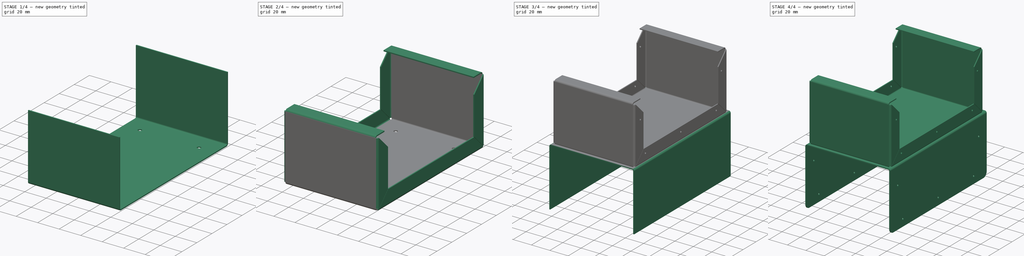
[diagram: build sequence overview — one tinted view per stage of 4, left to right]
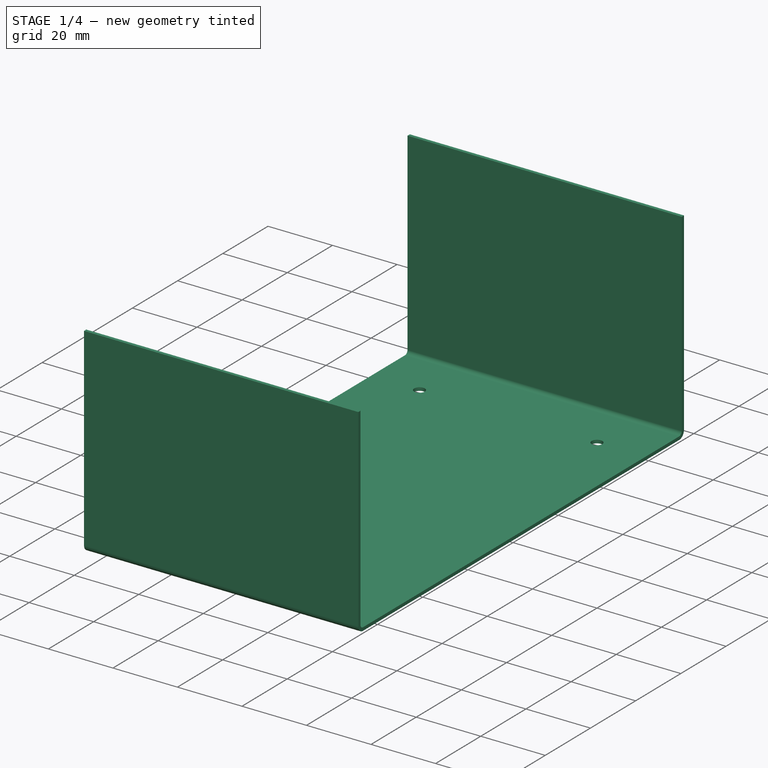
[diagram: stage 1 of 4 — iso view after this stage's code; geometry added in this stage tinted green]
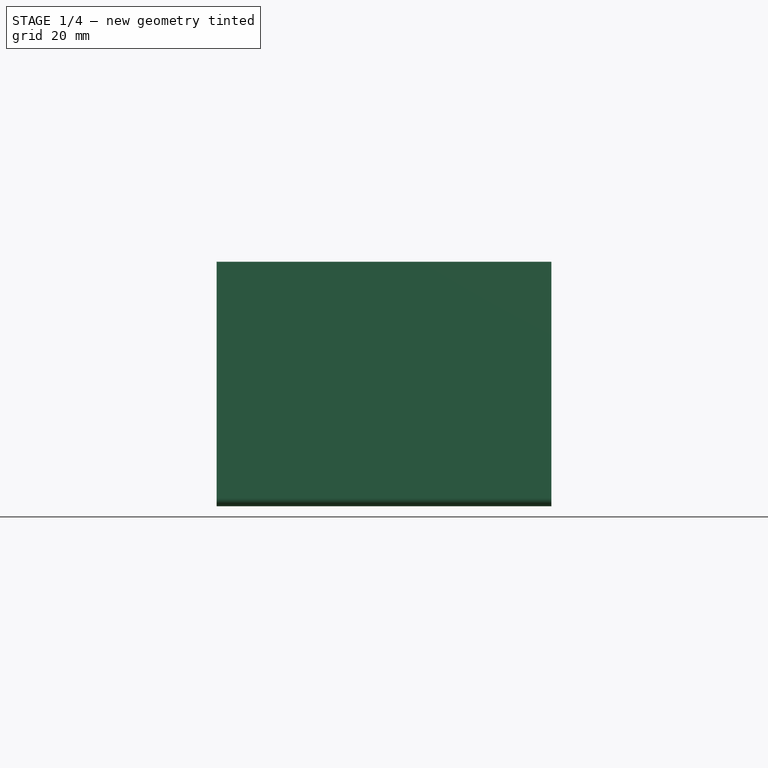
[diagram: stage 1 of 4 — front view after this stage's code; geometry added in this stage tinted green]
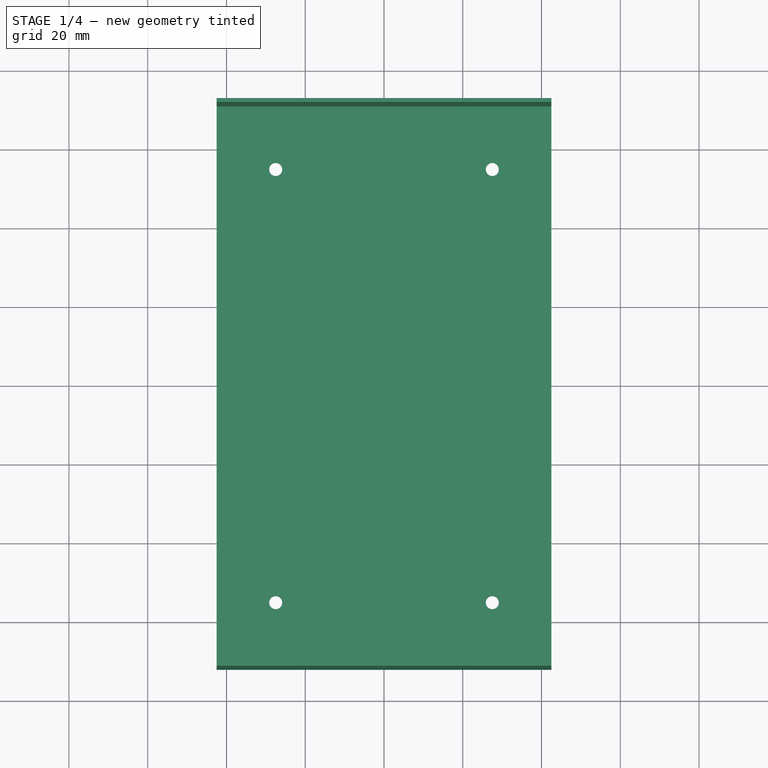
[diagram: stage 1 of 4 — top view after this stage's code; geometry added in this stage tinted green]
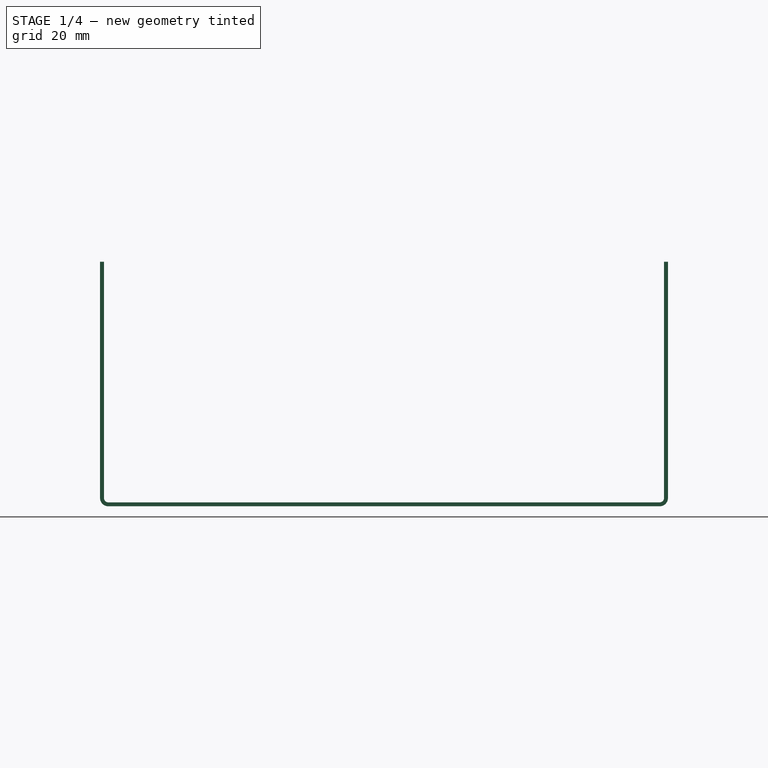
[diagram: stage 1 of 4 — right view after this stage's code; geometry added in this stage tinted green]
FCSTD DOCUMENT  (FreeCAD 0.21R33771 (Git))
Label: ADVtypeM_paramEnclosure
License: All rights reserved
LicenseURL: http://en.wikipedia.org/wiki/All_rights_reserved
objects: PartDesign::FeaturePython×5, Sketcher::SketchObject×4, PartDesign::Pad×2, PartDesign::Pocket×2, PartDesign::Body×2, Spreadsheet::Sheet×1, PartDesign::Fillet×1
note: 21 computed .brp shape members not serialized (recipe doc carries the construction recipe); baked Part::Feature solids carry a one-line shape summary decoded from their .brp

FEATURE [Sketcher::SketchObject] Sketch015
  FullyConstrained = true
  MapMode = 5
  Support = -> [XY_Plane124]
  expr: Constraints[17] = Spreadsheet.footw
  expr: Constraints[18] = Spreadsheet.footl
  expr: Constraints[8] = Spreadsheet.width
  expr: Constraints[9] = Spreadsheet.length
  sketch-geometry (8):
    g0: LineSegment StartX=-42.5 StartY=70 StartZ=0 EndX=42.5 EndY=70 EndZ=0
    g1: LineSegment StartX=42.5 StartY=70 StartZ=0 EndX=42.5 EndY=-70 EndZ=0
    g2: LineSegment StartX=42.5 StartY=-70 StartZ=0 EndX=-42.5 EndY=-70 EndZ=0
    g3: LineSegment StartX=-42.5 StartY=-70 StartZ=0 EndX=-42.5 EndY=70 EndZ=0
    g4: Circle CenterX=-27.5 CenterY=55 CenterZ=0 NormalX=0 NormalY=0 NormalZ=1 AngleXU=0 Radius=1.65
    g5: Circle CenterX=27.5 CenterY=55 CenterZ=0 NormalX=0 NormalY=0 NormalZ=1 AngleXU=0 Radius=1.65
    g6: Circle CenterX=-27.5 CenterY=-55 CenterZ=0 NormalX=0 NormalY=0 NormalZ=1 AngleXU=0 Radius=1.65
    g7: Circle CenterX=27.5 CenterY=-55 CenterZ=0 NormalX=0 NormalY=0 NormalZ=1 AngleXU=0 Radius=1.65
  constraints (19):
    c: Coincident(g0,g1)
    c: Coincident(g1,g2)
    c: Coincident(g2,g3)
    c: Coincident(g3,g0)
    c: Horizontal(g2)
    c: Vertical(g1)
    c: Symmetric(g0,g0,g-2)
    c: Symmetric(g0,g2,g-1)
    c: DistanceX(g0,g0) = 85
    c: DistanceY(g1,g1) = 140
    c: Equal(g4,g5)
    c: Equal(g5,g6)
    c: Equal(g6,g7)
    c: Diameter(g4) = 3.3
    c: Symmetric(g4,g5,g-2)
    c: Symmetric(g6,g7,g-2)
    c: Symmetric(g6,g4,g-1)
    c: DistanceX(g4,g5) = 55
    c: DistanceY(g6,g4) = 110
FEATURE [Spreadsheet::Sheet] Spreadsheet
  cells = A2='inner length (min 50); B2=140; C2(length)==B2 < 75 ? 75 : B2; D2(footl)==length - 30; E2(hemholetop)==length - hem - radius * 2; F2(toplength)==length + 10; A3='inner width (min 50); B3=85; C3(width)==B3 < 50 ? 50 : B3; D3(footw)==width - 30; E3(holewdepth)==width + 10; F3(topwidth)==width + radius * 2 + thickness; A4='inner height (min 25); B4=60; C4(height)==B4 < 25 ? 25 : B4; D4(hemholefrontrear)==height * 0.75; E4(coverposition)==height + thickness * 2 + radius * 2; F4(coverheight)==height + thickness * 2; A5='thickness (min 0.6 max 2.0); B5=1; C5(thickness)==B5 < 0.6 ? 0.6 : (B5 > 2 ? 2 : B5); D5(radius)==thickness * 1.1; A6='hem (min 10 max 20); B6=12; C6(hem)==B6 < 10 ? 10 : (B6 > 20 ? 20 : B6); D6(hemholebot)==hem - 3; E6(coverhemholebot)==-coverposition + hemholebot; F6(coverhemholefrontrear)==-coverposition * 0.25 - radius * 2 - thickness
FEATURE [PartDesign::Pad] Pad002
  Direction = (0,0,1)
  Length = 1
  Length2 = 10
  Profile = -> Sketch015
  ReferenceAxis = -> Sketch015 [N_Axis]
  Type = 0
  expr: Length = Spreadsheet.thickness
FEATURE [PartDesign::FeaturePython] Bend015  # WARN: FeaturePython — macro-defined, semantics opaque (R4)
  AutoMiter = false
  BaseFeature = -> Pad002
  BendType = 0
  LengthList = [60]
  LengthSpec = 0
  ReliefFactor = 0.7
  UseReliefFactor = false
  angle = 90
  baseObject = -> Pad002 [Edge9,Edge3]
  bendAList = [90]
  extend1 = 0
  extend2 = 0
  gap1 = 0
  gap2 = 0
  invert = false
  kfactor = 0.5
  length = 60
  maxExtendDist = 5
  minGap = 0.1
  minReliefGap = 1
  miterangle1 = 0
  miterangle2 = 0
  offset = 0
  radius = 1.1
  reliefType = 0
  reliefd = 1
  reliefw = 0.8
  sketchflip = false
  sketchinvert = false
  unfold = false
  expr: length = Spreadsheet.height
  expr: radius = Spreadsheet.radius
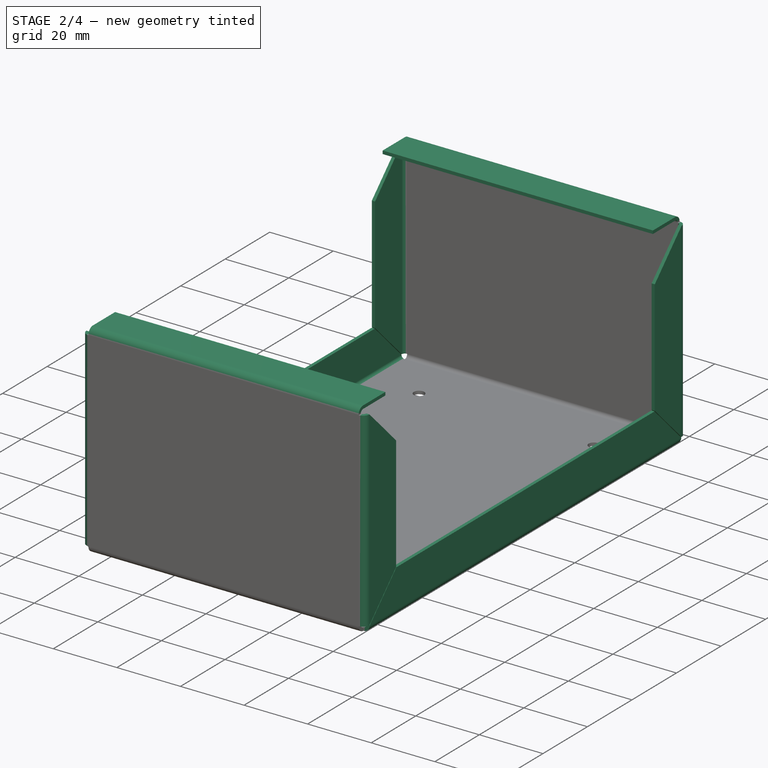
[diagram: stage 2 of 4 — iso view after this stage's code; geometry added in this stage tinted green]
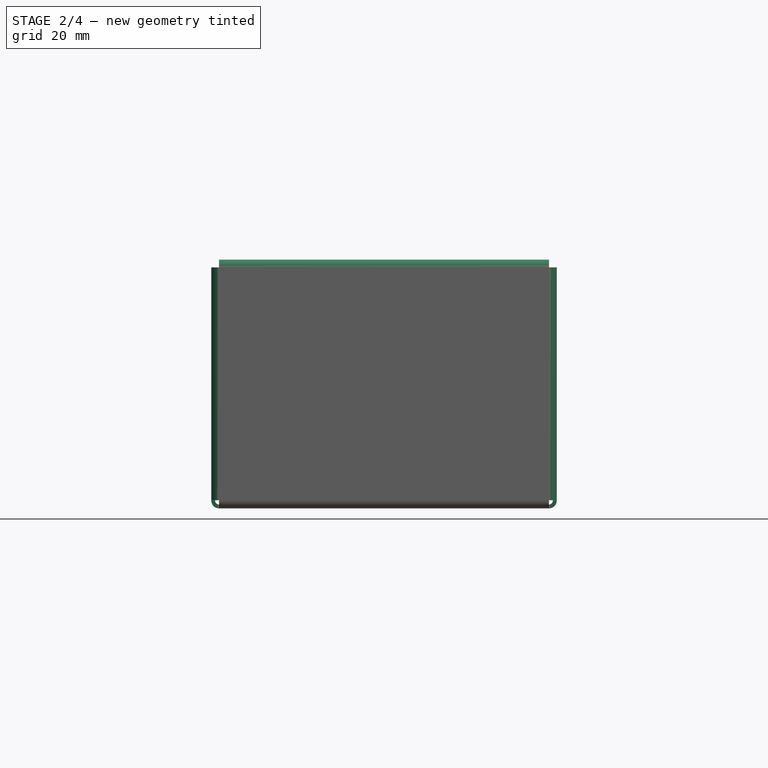
[diagram: stage 2 of 4 — front view after this stage's code; geometry added in this stage tinted green]
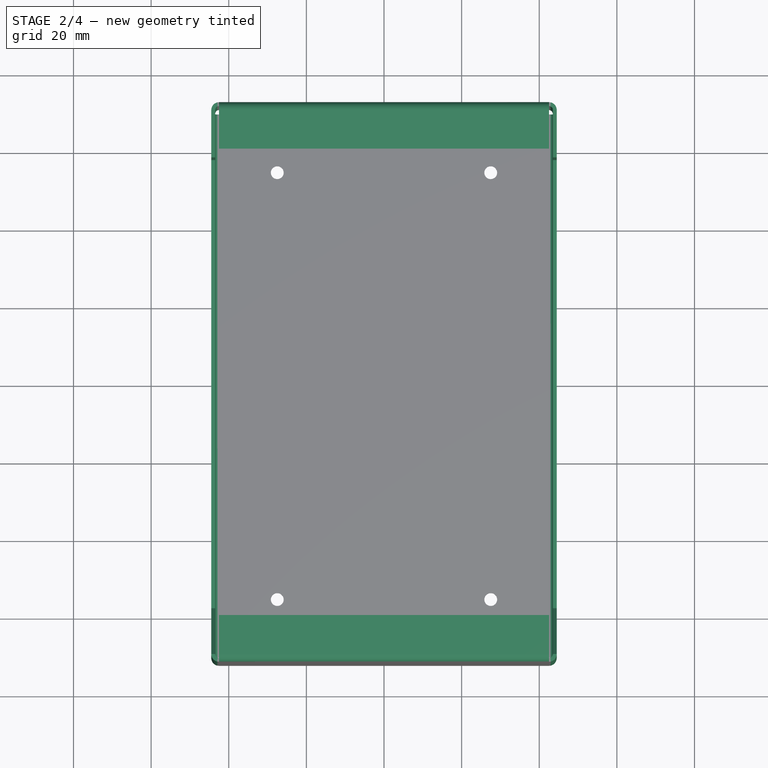
[diagram: stage 2 of 4 — top view after this stage's code; geometry added in this stage tinted green]
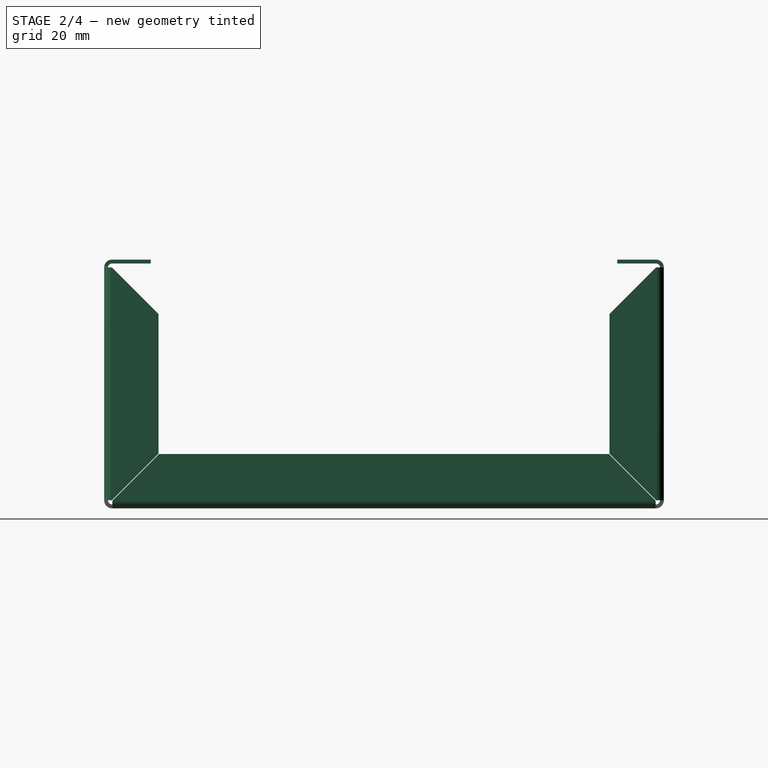
[diagram: stage 2 of 4 — right view after this stage's code; geometry added in this stage tinted green]
FEATURE [PartDesign::Body] Body003  label="Top"
  Group = -> [Sketch017,Pad003,Bend018,Sketch018,Pocket005,Fillet001]
  Origin = -> Origin125
  Placement = pos=(0,0,64.2) rot=(0,0,1;0rad)
  Tip = -> Fillet001
  expr: .Placement.Base.z = Spreadsheet.coverposition
FEATURE [PartDesign::FeaturePython] Bend  # WARN: FeaturePython — macro-defined, semantics opaque (R4)
  AutoMiter = false
  BaseFeature = -> Bend015
  BendType = 0
  LengthList = [12]
  LengthSpec = 0
  ReliefFactor = 0.7
  UseReliefFactor = false
  angle = 90
  baseObject = -> Bend015 [Edge24,Edge20]
  bendAList = [90]
  extend1 = 0
  extend2 = 0
  gap1 = 0
  gap2 = 0
  invert = false
  kfactor = 0.5
  length = 12
  maxExtendDist = 5
  minGap = 0.1
  minReliefGap = 1
  miterangle1 = 45
  miterangle2 = 45
  offset = 0
  radius = 1
  reliefType = 0
  reliefd = 1
  reliefw = 0.8
  sketchflip = false
  sketchinvert = false
  unfold = false
  expr: length = Spreadsheet.hem
FEATURE [PartDesign::FeaturePython] Bend019  # WARN: FeaturePython — macro-defined, semantics opaque (R4)
  AutoMiter = false
  BaseFeature = -> Bend
  BendType = 0
  LengthList = [12]
  LengthSpec = 0
  ReliefFactor = 0.7
  UseReliefFactor = false
  angle = 90
  baseObject = -> Bend [Edge43,Edge70,Edge66,Edge75]
  bendAList = [90]
  extend1 = 0
  extend2 = 0
  gap1 = 0
  gap2 = 0
  invert = false
  kfactor = 0.5
  length = 12
  maxExtendDist = 5
  minGap = 0.1
  minReliefGap = 1
  miterangle1 = 45
  miterangle2 = 45
  offset = 0
  radius = 1
  reliefType = 0
  reliefd = 1
  reliefw = 0.8
  sketchflip = false
  sketchinvert = false
  unfold = false
  expr: length = Spreadsheet.hem
FEATURE [PartDesign::FeaturePython] Bend020  # WARN: FeaturePython — macro-defined, semantics opaque (R4)
  AutoMiter = true
  BaseFeature = -> Bend019
  BendType = 0
  LengthList = [10]
  LengthSpec = 0
  ReliefFactor = 0.7
  UseReliefFactor = false
  angle = 90
  baseObject = -> Bend019 [Edge20,Edge108]
  bendAList = [90]
  extend1 = 0
  extend2 = 0
  gap1 = 0
  gap2 = 0
  invert = false
  kfactor = 0.5
  length = 10
  maxExtendDist = 5
  minGap = 0.1
  minReliefGap = 1
  miterangle1 = 0
  miterangle2 = 0
  offset = 0
  radius = 1
  reliefType = 0
  reliefd = 1
  reliefw = 0.8
  sketchflip = false
  sketchinvert = false
  unfold = false
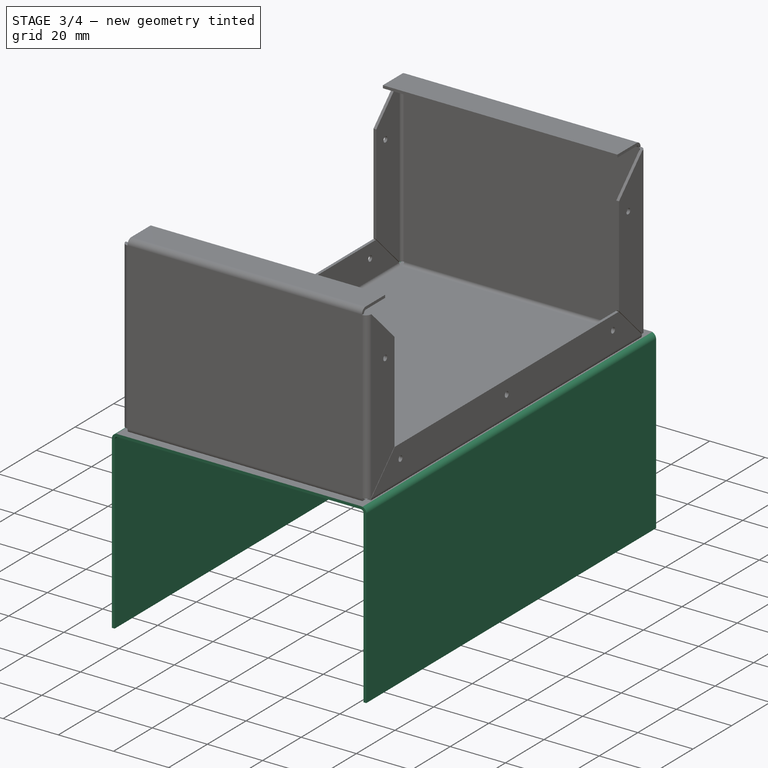
[diagram: stage 3 of 4 — iso view after this stage's code; geometry added in this stage tinted green]
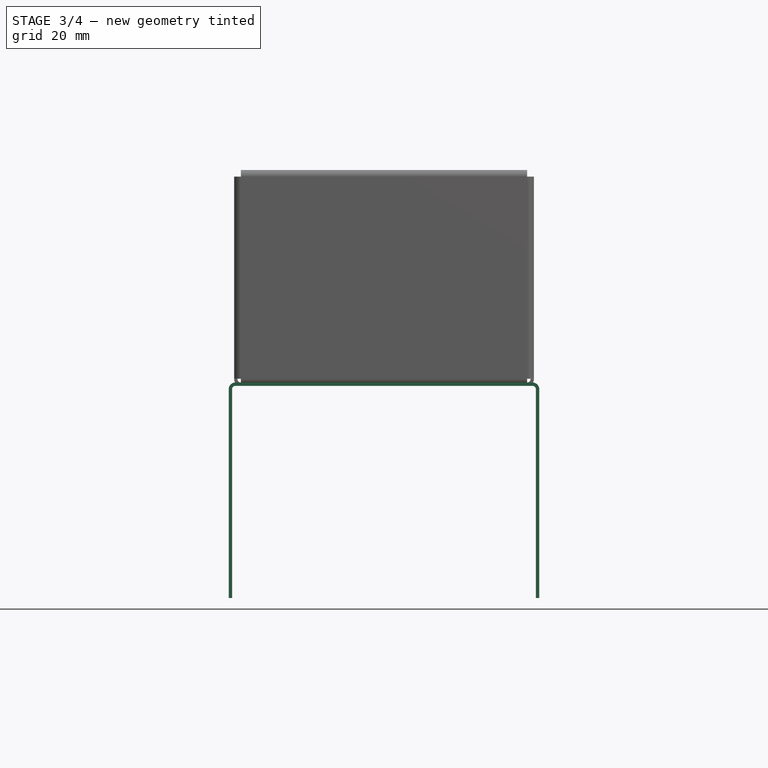
[diagram: stage 3 of 4 — front view after this stage's code; geometry added in this stage tinted green]
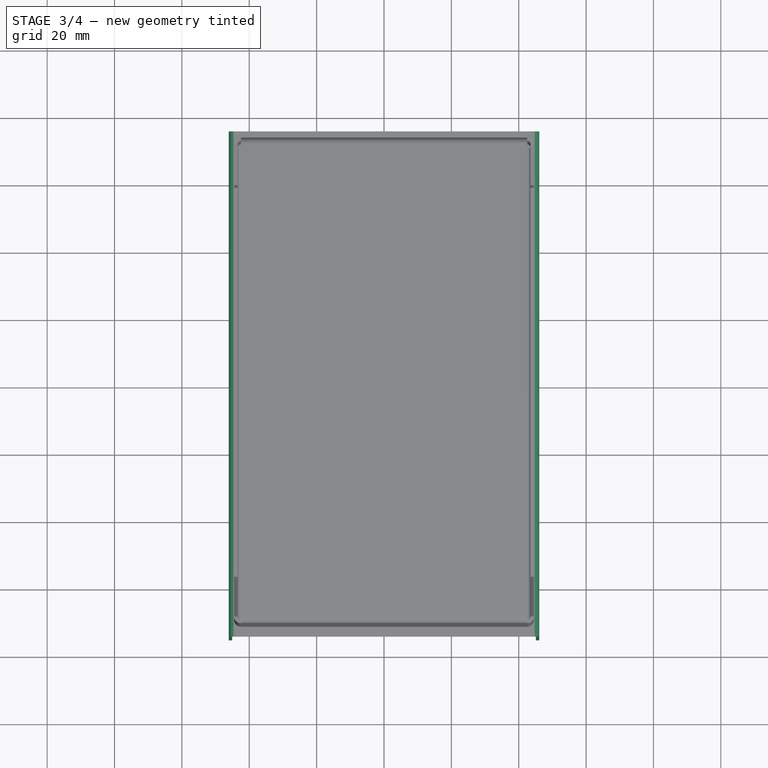
[diagram: stage 3 of 4 — top view after this stage's code; geometry added in this stage tinted green]
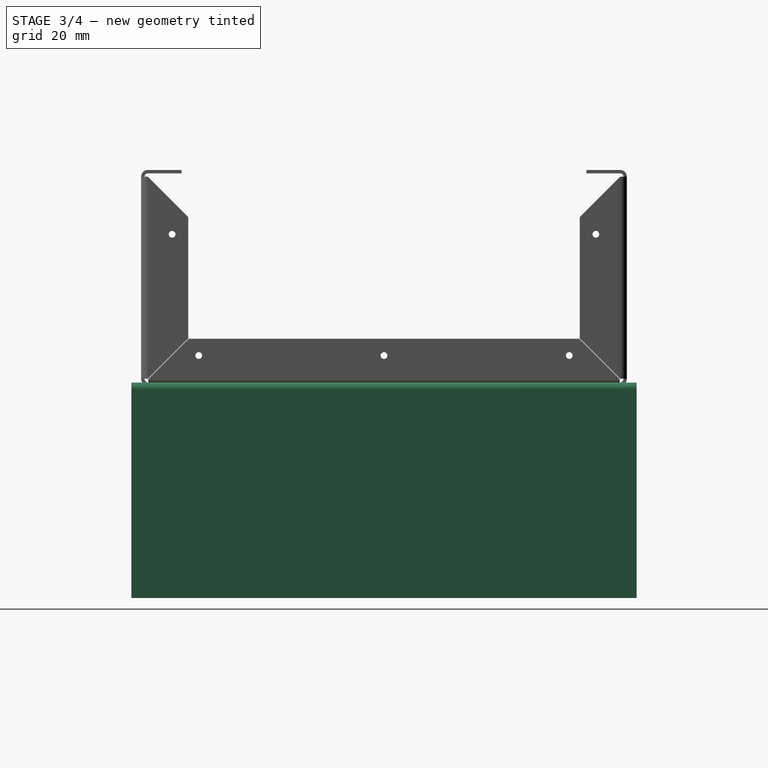
[diagram: stage 3 of 4 — right view after this stage's code; geometry added in this stage tinted green]
FEATURE [Sketcher::SketchObject] Sketch017
  FullyConstrained = true
  MapMode = 5
  Support = -> [XY_Plane125]
  expr: Constraints[8] = Spreadsheet.topwidth
  expr: Constraints[9] = Spreadsheet.toplength
  sketch-geometry (4):
    g0: LineSegment StartX=-44.1 StartY=75 StartZ=0 EndX=44.1 EndY=75 EndZ=0
    g1: LineSegment StartX=44.1 StartY=75 StartZ=0 EndX=44.1 EndY=-75 EndZ=0
    g2: LineSegment StartX=44.1 StartY=-75 StartZ=0 EndX=-44.1 EndY=-75 EndZ=0
    g3: LineSegment StartX=-44.1 StartY=-75 StartZ=0 EndX=-44.1 EndY=75 EndZ=0
  constraints (10):
    c: Coincident(g0,g1)
    c: Coincident(g1,g2)
    c: Coincident(g2,g3)
    c: Coincident(g3,g0)
    c: Horizontal(g2)
    c: Vertical(g1)
    c: Symmetric(g0,g0,g-2)
    c: Symmetric(g0,g2,g-1)
    c: DistanceX(g0,g0) = 88.2
    c: DistanceY(g3,g3) = 150
FEATURE [PartDesign::Pad] Pad003
  Direction = (0,0,1)
  Length = 1
  Length2 = 10
  Profile = -> Sketch017
  ReferenceAxis = -> Sketch017 [N_Axis]
  Type = 0
  expr: Length = Spreadsheet.thickness
FEATURE [PartDesign::FeaturePython] Bend018  # WARN: FeaturePython — macro-defined, semantics opaque (R4)
  AutoMiter = true
  BaseFeature = -> Pad003
  BendType = 0
  LengthList = [62]
  LengthSpec = 0
  ReliefFactor = 0.7
  UseReliefFactor = false
  angle = 90
  baseObject = -> Pad003 [Edge7,Edge12]
  bendAList = [90]
  extend1 = 0
  extend2 = 0
  gap1 = 0
  gap2 = 0
  invert = false
  kfactor = 0.5
  length = 62
  maxExtendDist = 5
  minGap = 0.1
  minReliefGap = 1
  miterangle1 = 0
  miterangle2 = 0
  offset = 0
  radius = 1
  reliefType = 0
  reliefd = 1
  reliefw = 0.8
  sketchflip = false
  sketchinvert = false
  unfold = false
  expr: length = Spreadsheet.coverheight
FEATURE [Sketcher::SketchObject] Sketch016
  FullyConstrained = true
  MapMode = 5
  Placement = pos=(44.5,0,-4.9e-15) rot=(0.57735,0.57735,0.57735;2.0944rad)
  Support = -> [Bend020]
  expr: Constraints[12] = Spreadsheet.hemholebot
  expr: Constraints[3] = Spreadsheet.hemholebot
  expr: Constraints[4] = Spreadsheet.footl
  expr: Constraints[8] = Spreadsheet.hemholefrontrear
  expr: Constraints[9] = Spreadsheet.hemholetop
  sketch-geometry (5):
    g0: Circle CenterX=-55 CenterY=9 CenterZ=0 NormalX=0 NormalY=0 NormalZ=1 AngleXU=0 Radius=1
    g1: Circle CenterX=55 CenterY=9 CenterZ=0 NormalX=0 NormalY=0 NormalZ=1 AngleXU=0 Radius=1
    g2: Circle CenterX=-62.9 CenterY=45 CenterZ=0 NormalX=0 NormalY=0 NormalZ=1 AngleXU=0 Radius=1
    g3: Circle CenterX=62.9 CenterY=45 CenterZ=0 NormalX=0 NormalY=0 NormalZ=1 AngleXU=0 Radius=1
    g4: Circle CenterX=0 CenterY=9 CenterZ=0 NormalX=0 NormalY=0 NormalZ=1 AngleXU=0 Radius=1
  constraints (13):
    c: Equal(g0,g1)
    c: Diameter(g0) = 2
    c: Symmetric(g0,g1,g-2)
    c: DistanceY(g0) = 9
    c: DistanceX(g0,g1) = 110
    c: Equal(g0,g2)
    c: Equal(g2,g3)
    c: Symmetric(g2,g3,g-2)
    c: DistanceY(g2) = 45
    c: DistanceX(g2,g3) = 125.8
    c: PointOnObject(g4,g-2)
    c: Equal(g0,g4)
    c: DistanceY(g4) = 9
FEATURE [PartDesign::Pocket] Pocket
  BaseFeature = -> Bend020
  Direction = (-1,0,0)
  Length = 95
  Length2 = 5
  Profile = -> Sketch016
  ReferenceAxis = -> Sketch016 [N_Axis]
  Type = 0
  expr: Length = Spreadsheet.holewdepth
FEATURE [PartDesign::Body] Body002  label="Bottom"
  Group = -> [Sketch015,Pad002,Bend015,Sketch016,Bend,Bend019,Bend020,Pocket]
  Origin = -> Origin124
  Tip = -> Pocket
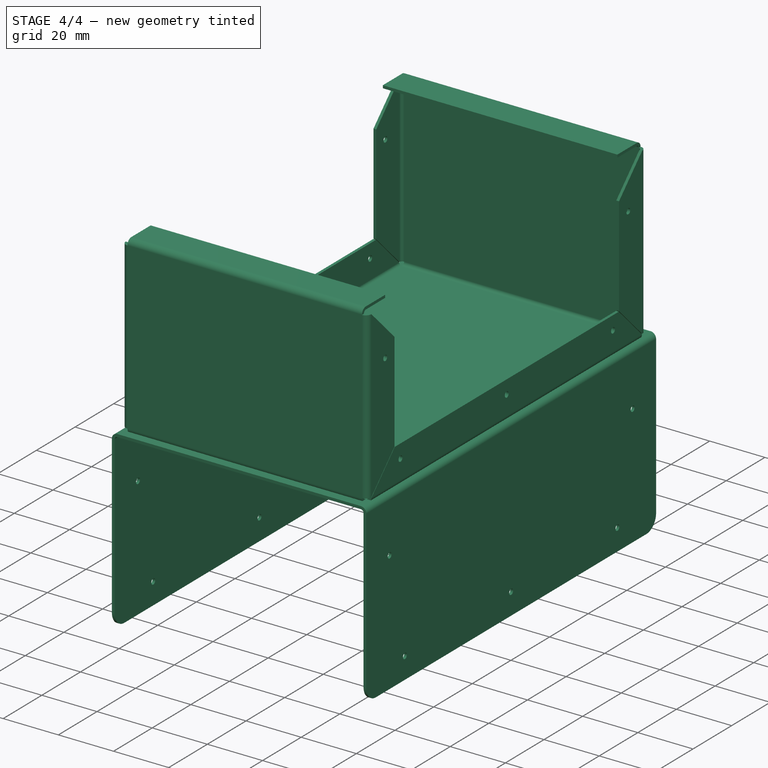
[diagram: stage 4 of 4 — iso view after this stage's code; geometry added in this stage tinted green]
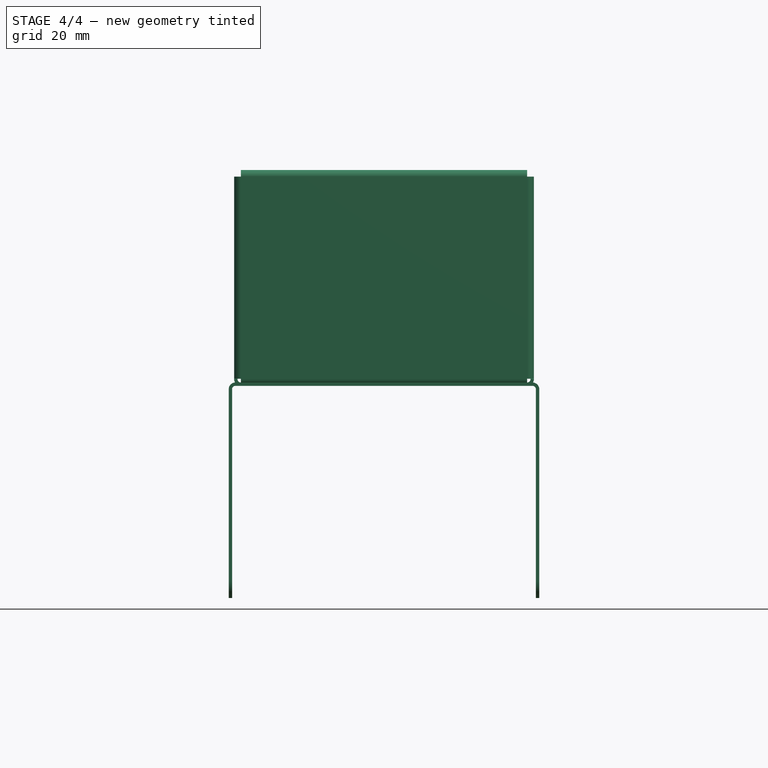
[diagram: stage 4 of 4 — front view after this stage's code; geometry added in this stage tinted green]
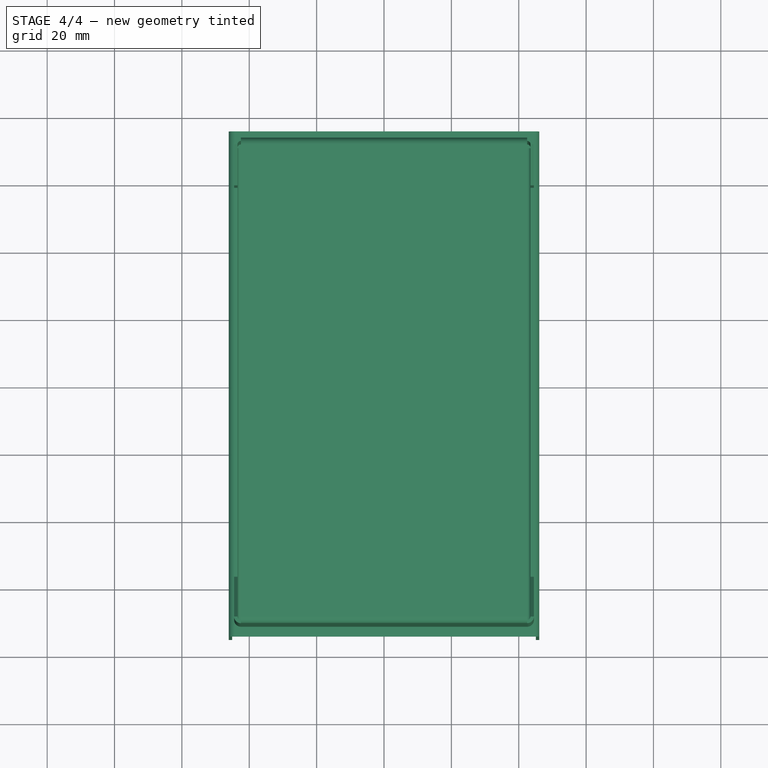
[diagram: stage 4 of 4 — top view after this stage's code; geometry added in this stage tinted green]
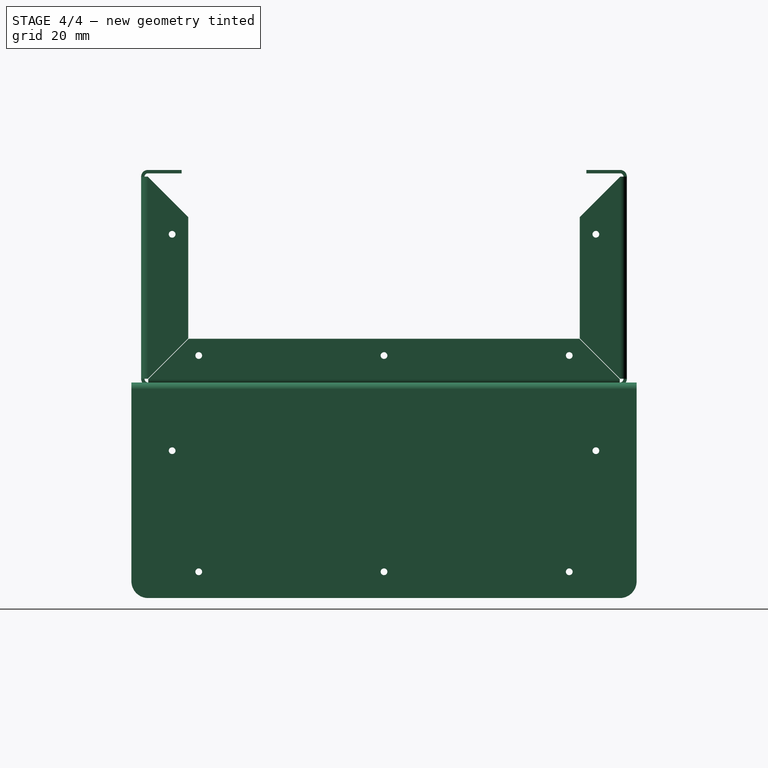
[diagram: stage 4 of 4 — right view after this stage's code; geometry added in this stage tinted green]
FEATURE [Sketcher::SketchObject] Sketch018
  FullyConstrained = true
  MapMode = 5
  Placement = pos=(46.1,0,5.1e-15) rot=(0.57735,0.57735,0.57735;2.0944rad)
  Support = -> [Bend018]
  expr: Constraints[11] = Spreadsheet.hemholetop
  expr: Constraints[12] = Spreadsheet.coverhemholefrontrear
  expr: Constraints[2] = Spreadsheet.coverhemholebot
  expr: Constraints[7] = Spreadsheet.coverhemholebot
  expr: Constraints[9] = Spreadsheet.footl
  sketch-geometry (5):
    g0: Circle CenterX=0 CenterY=-55.2 CenterZ=0 NormalX=0 NormalY=0 NormalZ=1 AngleXU=0 Radius=1
    g1: Circle CenterX=55 CenterY=-55.2 CenterZ=0 NormalX=0 NormalY=0 NormalZ=1 AngleXU=0 Radius=1
    g2: Circle CenterX=62.9 CenterY=-19.25 CenterZ=0 NormalX=0 NormalY=0 NormalZ=1 AngleXU=0 Radius=1
    g3: Circle CenterX=-55 CenterY=-55.2 CenterZ=0 NormalX=0 NormalY=0 NormalZ=1 AngleXU=0 Radius=1
    g4: Circle CenterX=-62.9 CenterY=-19.25 CenterZ=0 NormalX=0 NormalY=0 NormalZ=1 AngleXU=0 Radius=1
  constraints (13):
    c: PointOnObject(g0,g-2)
    c: Diameter(g0) = 2
    c: DistanceY(g0) = -55.2
    c: Equal(g4,g0)
    c: Equal(g4,g3)
    c: Equal(g3,g1)
    c: Equal(g1,g2)
    c: DistanceY(g3) = -55.2
    c: Symmetric(g3,g1,g-2)
    c: DistanceX(g3,g1) = 110
    c: Symmetric(g4,g2,g-2)
    c: DistanceX(g4,g2) = 125.8
    c: DistanceY(g4) = -19.25
FEATURE [PartDesign::Pocket] Pocket005
  BaseFeature = -> Bend018
  Direction = (-1,0,0)
  Length = 95
  Length2 = 5
  Profile = -> Sketch018
  ReferenceAxis = -> Sketch018 [N_Axis]
  Type = 0
  expr: Length = Spreadsheet.holewdepth
FEATURE [PartDesign::Fillet] Fillet001
  Base = -> Pocket005 [Edge8,Edge69,Edge2,Edge51]
  BaseFeature = -> Pocket005
  Radius = 5
  SupportTransform = false
  UseAllEdges = false
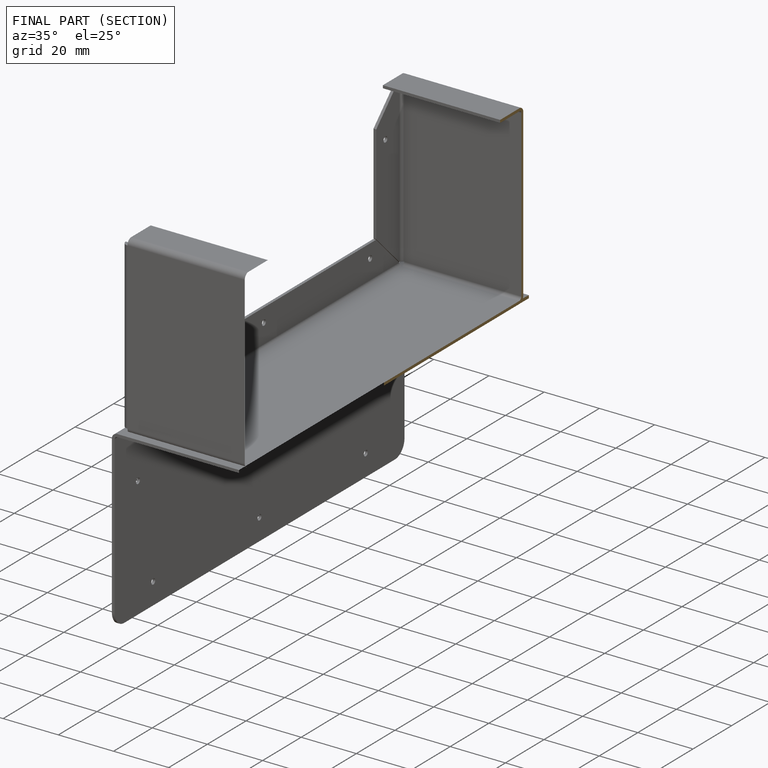
[diagram: finished part — half-section view (interior)]
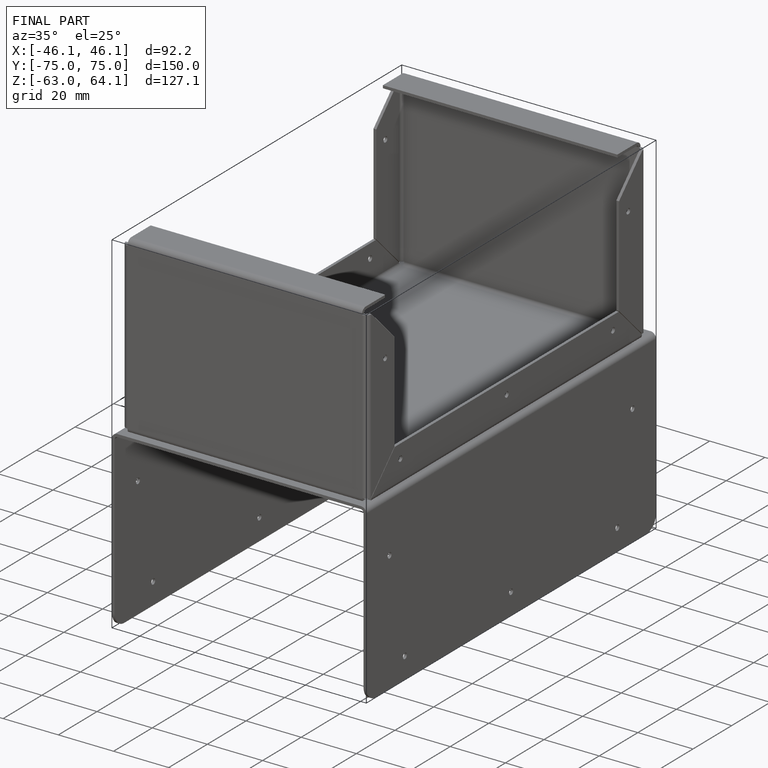
[diagram: finished part — iso view with bounding-box wireframe]
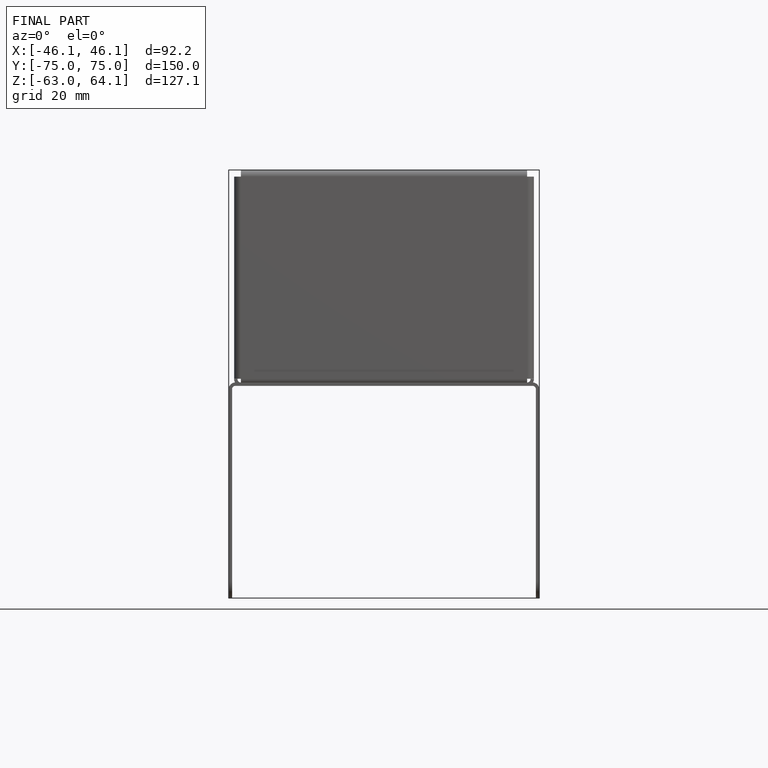
[diagram: finished part — front view with bounding-box wireframe]
